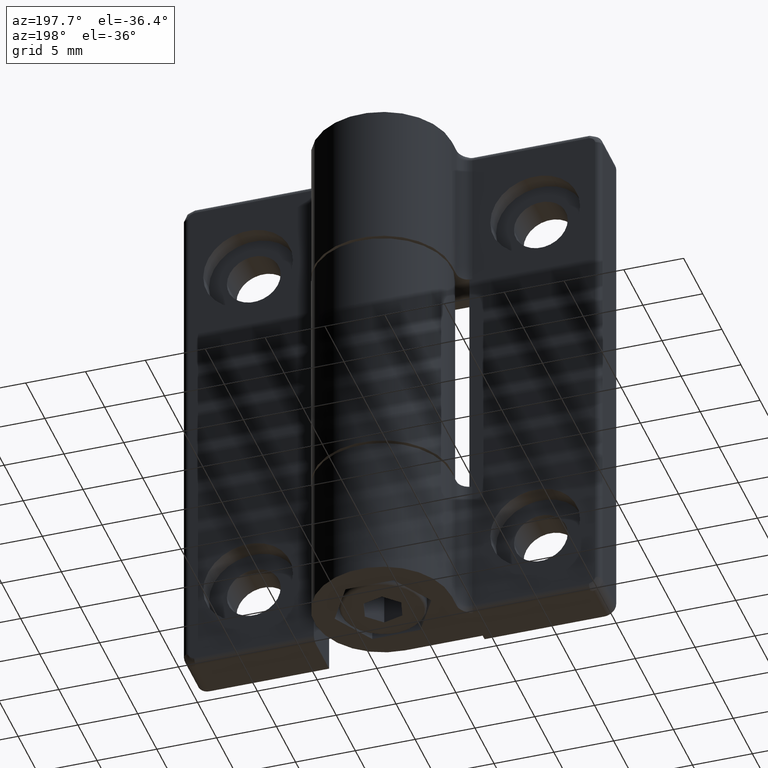
[diagram: clean part render]
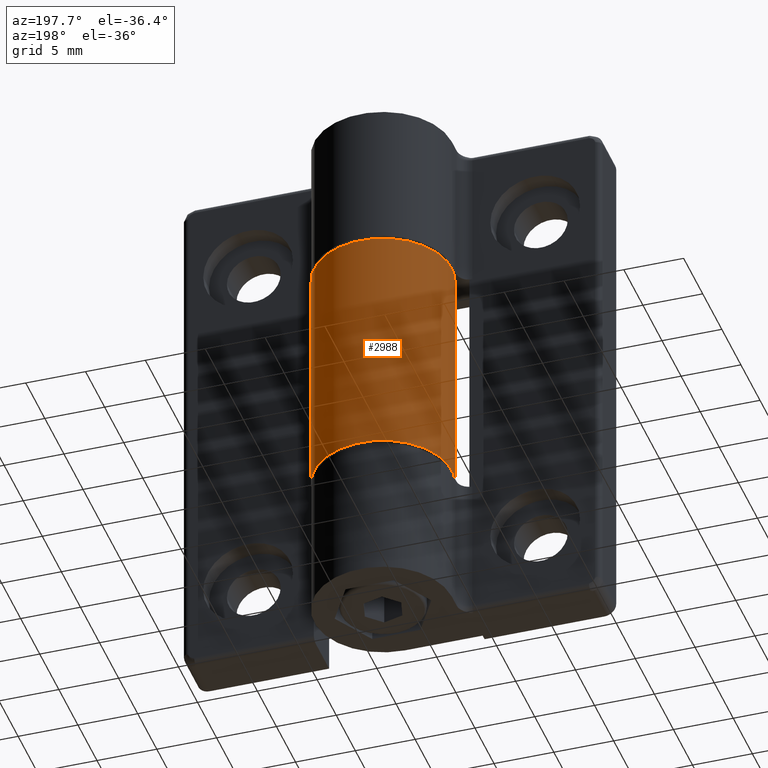
[diagram: same view with one face highlighted and labeled with its STEP entity id]
A machine part, auxiliary view. The second image highlights one B-rep face of the part: STEP entity #2988.
In plain terms, the highlighted cylindrical surface (partial cylindrical patch) has radius 5.75 mm, axis along (0, 0, 1).
Its self-contained STEP definition (entity closure, byte-faithful):
#500=FACE_OUTER_BOUND('',#642,.T.);
#642=EDGE_LOOP('',(#2756,#2757,#2758,#2759));
#807=LINE('',#30238,#961);
#809=LINE('',#30241,#963);
#961=VECTOR('',#3608,20.);
#963=VECTOR('',#3612,20.);
#1036=CIRCLE('',#3147,5.75);
#1040=CIRCLE('',#3153,5.75);
#1410=VERTEX_POINT('',#30202);
#1411=VERTEX_POINT('',#30204);
#1421=VERTEX_POINT('',#30226);
#1422=VERTEX_POINT('',#30228);
#1861=EDGE_CURVE('',#1411,#1410,#1036,.T.);
#1872=EDGE_CURVE('',#1422,#1421,#1040,.T.);
#1877=EDGE_CURVE('',#1421,#1411,#807,.T.);
#1879=EDGE_CURVE('',#1410,#1422,#809,.T.);
#2756=ORIENTED_EDGE('',*,*,#1861,.T.);
#2757=ORIENTED_EDGE('',*,*,#1879,.T.);
#2758=ORIENTED_EDGE('',*,*,#1872,.T.);
#2759=ORIENTED_EDGE('',*,*,#1877,.T.);
#2888=CYLINDRICAL_SURFACE('',#3156,5.75);
#2988=ADVANCED_FACE('',(#500),#2888,.T.);
#3147=AXIS2_PLACEMENT_3D('',#30205,#3580,#3581);
#3153=AXIS2_PLACEMENT_3D('',#30229,#3599,#3600);
#3156=AXIS2_PLACEMENT_3D('',#30240,#3610,#3611);
#3580=DIRECTION('center_axis',(0.,1.,0.));
#3581=DIRECTION('ref_axis',(1.,0.,0.));
#3599=DIRECTION('center_axis',(0.,-1.,0.));
#3600=DIRECTION('ref_axis',(1.,0.,0.));
#3608=DIRECTION('',(0.,-1.,0.));
#3610=DIRECTION('center_axis',(0.,1.,0.));
#3611=DIRECTION('ref_axis',(1.,0.,0.));
#3612=DIRECTION('',(0.,1.,0.));
#30202=CARTESIAN_POINT('',(51.8356679038389,-10.,0.500000000000003));
#30204=CARTESIAN_POINT('',(46.0856679038389,-10.,6.25));
#30205=CARTESIAN_POINT('Origin',(51.8356679038389,-10.,6.25));
#30226=CARTESIAN_POINT('',(46.0856679038389,10.,6.25));
#30228=CARTESIAN_POINT('',(51.8356679038389,10.,0.500000000000003));
#30229=CARTESIAN_POINT('Origin',(51.8356679038389,10.,6.25));
#30238=CARTESIAN_POINT('',(46.0856679038389,0.,6.25));
#30240=CARTESIAN_POINT('Origin',(51.8356679038389,0.,6.25));
#30241=CARTESIAN_POINT('',(51.8356679038389,0.,0.500000000000003));